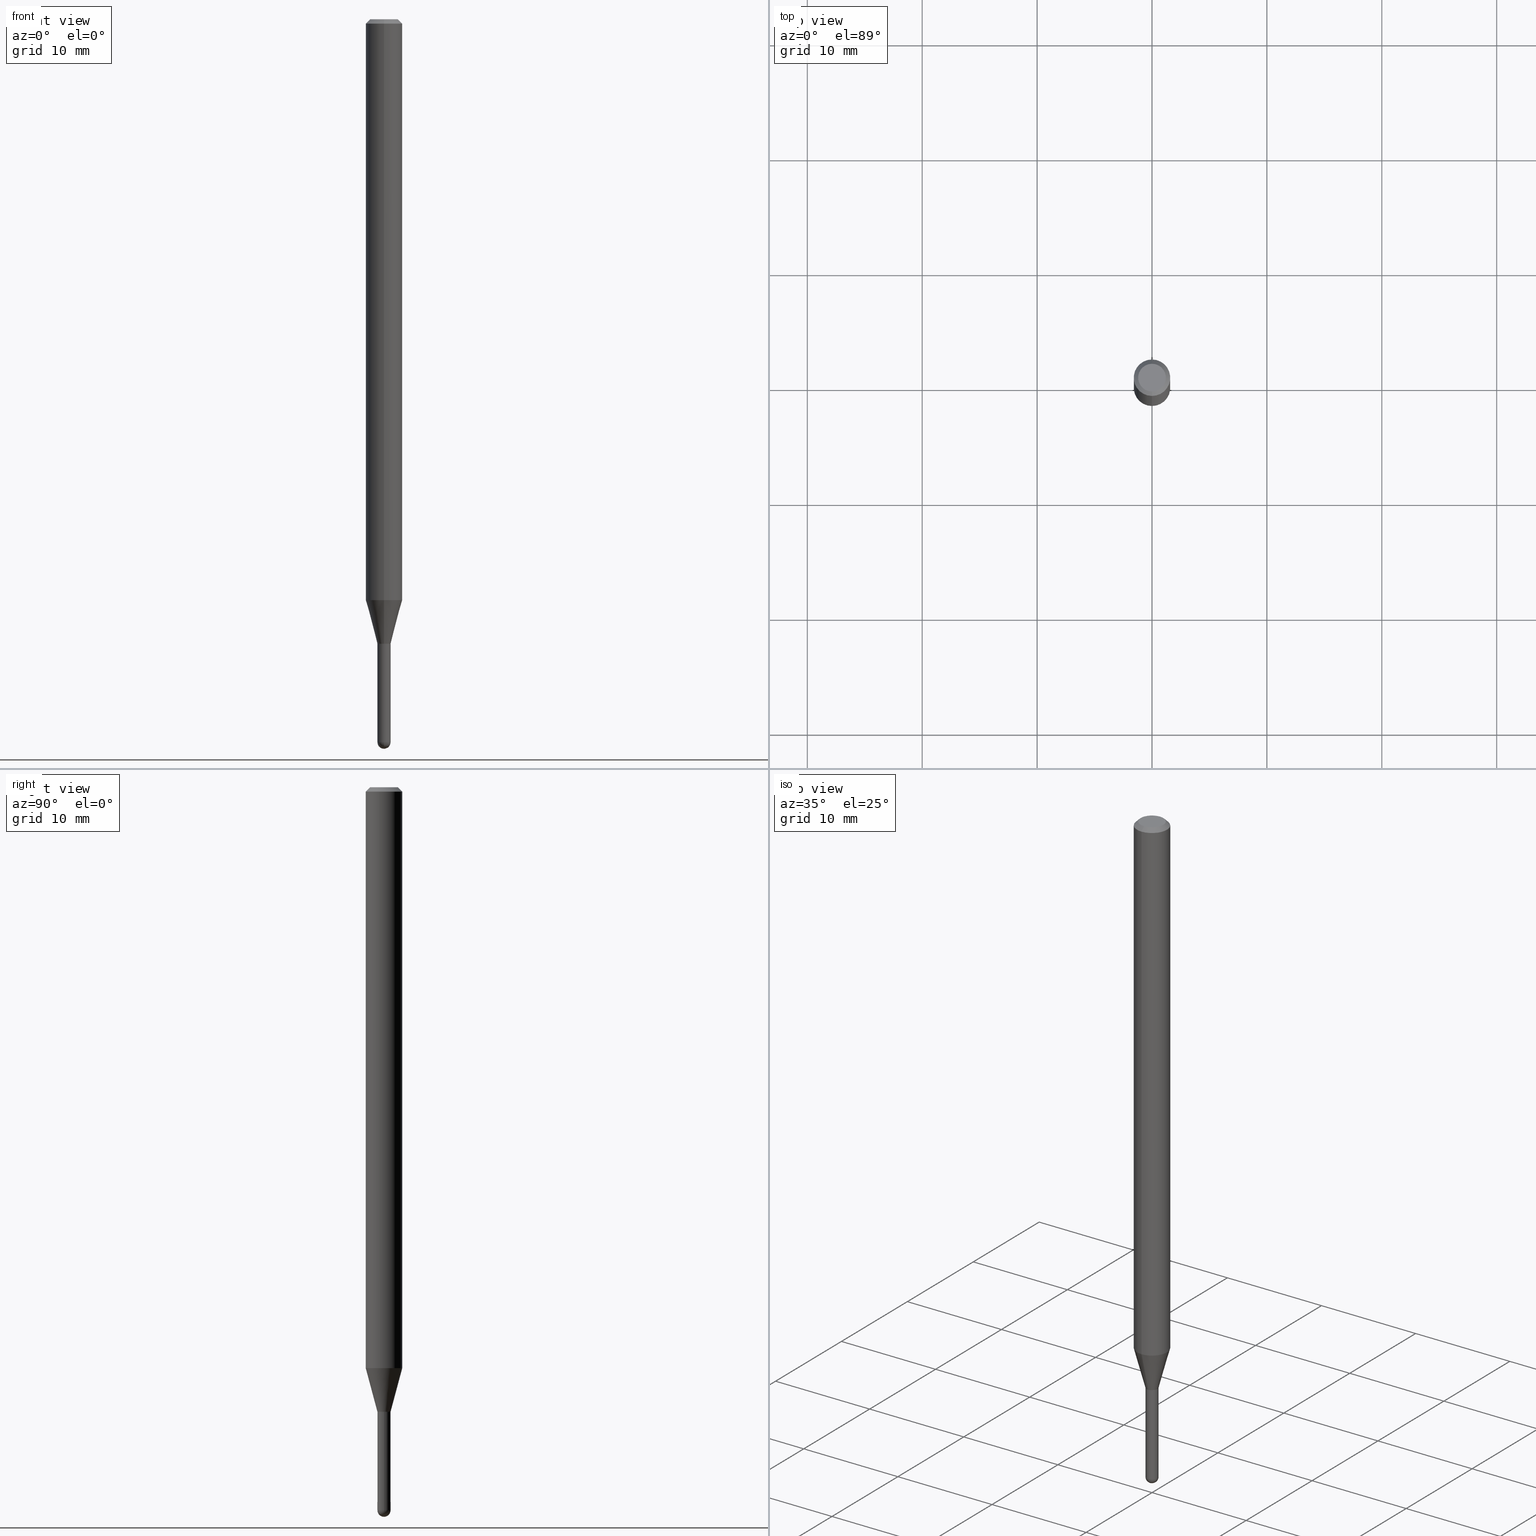
[diagram: canonical four-view strip — front | top / right | iso, engineering-drawing reading convention]
A machine part, canonical four-view strip (front | top / right | iso — engineering-drawing reading convention). The complete STEP part file that produces these views, byte-faithful:
ISO-10303-21;
HEADER;
FILE_DESCRIPTION (( 'STEP AP203' ),
    '1' );
FILE_NAME ('01535.STEP',
    '2024-03-07T19:37:22',
    ( '' ),
    ( '' ),
    'SwSTEP 2.0',
    'SolidWorks 2023',
    '' );
FILE_SCHEMA (( 'CONFIG_CONTROL_DESIGN' ));
ENDSEC;

DATA;
#1 = CIRCLE ( 'NONE', #127, 0.02250000000000019693 ) ;
#2 = PERSON_AND_ORGANIZATION ( #41, #285 ) ;
#3 = CC_DESIGN_APPROVAL ( #428, ( #442 ) ) ;
#4 = LINE ( 'NONE', #47, #118 ) ;
#5 = CALENDAR_DATE ( 2024, 7, 3 ) ;
#6 = ORIENTED_EDGE ( 'NONE', *, *, #357, .F. ) ;
#7 = DIRECTION ( 'NONE',  ( -2.445426570913478520E-29, 3.491541822156042445E-15, 1.000000000000000000 ) ) ;
#8 = CIRCLE ( 'NONE', #32, 0.02199999999999999872 ) ;
#9 = EDGE_CURVE ( 'NONE', #407, #60, #411, .T. ) ;
#10 = PERSON_AND_ORGANIZATION ( #41, #285 ) ;
#11 = VECTOR ( 'NONE', #458, 39.37007874015748854 ) ;
#12 = ADVANCED_FACE ( 'NONE', ( #59 ), #20, .F. ) ;
#13 = MANIFOLD_SOLID_BREP ( 'Body-Move/Copy2[1]', #91 ) ;
#14 = EDGE_LOOP ( 'NONE', ( #57, #26, #247, #19 ) ) ;
#15 = ORIENTED_EDGE ( 'NONE', *, *, #313, .T. ) ;
#16 = DIRECTION ( 'NONE',  ( -2.445426570913478520E-29, 3.491541822156042445E-15, 1.000000000000000000 ) ) ;
#17 = ORIENTED_EDGE ( 'NONE', *, *, #485, .T. ) ;
#18 = EDGE_CURVE ( 'NONE', #180, #479, #208, .T. ) ;
#19 = ORIENTED_EDGE ( 'NONE', *, *, #313, .F. ) ;
#20 = CYLINDRICAL_SURFACE ( 'NONE', #228, 0.02249999999999992284 ) ;
#21 = CIRCLE ( 'NONE', #212, 0.02199999999999999872 ) ;
#22 = ORIENTED_EDGE ( 'NONE', *, *, #495, .F. ) ;
#23 = CARTESIAN_POINT ( 'NONE',  ( 3.668139856370219951E-31, -5.237312733234067267E-17, -0.01500000000000000812 ) ) ;
#24 = EDGE_CURVE ( 'NONE', #450, #483, #284, .T. ) ;
#25 = CARTESIAN_POINT ( 'NONE',  ( -3.773273898774340269E-16, -0.04749999999999999362, 1.569907899179434960E-16 ) ) ;
#26 = ORIENTED_EDGE ( 'NONE', *, *, #37, .T. ) ;
#27 = CARTESIAN_POINT ( 'NONE',  ( 6.058648967323676636E-29, -8.650145016983893338E-15, -2.477500000000000036 ) ) ;
#28 = DIRECTION ( 'NONE',  ( -2.445426570913478520E-29, 3.491541822156042445E-15, 1.000000000000000000 ) ) ;
#29 = FACE_OUTER_BOUND ( 'NONE', #490, .T. ) ;
#30 = ORIENTED_EDGE ( 'NONE', *, *, #352, .F. ) ;
#31 = LINE ( 'NONE', #34, #214 ) ;
#32 = AXIS2_PLACEMENT_3D ( 'NONE', #368, #246, #328 ) ;
#33 = DIRECTION ( 'NONE',  ( -2.445426570913478520E-29, 3.491541822156042445E-15, 1.000000000000000000 ) ) ;
#34 = CARTESIAN_POINT ( 'NONE',  ( -4.287811248607203282E-16, -0.06250000000000005551, -0.01499999999999979128 ) ) ;
#35 = CARTESIAN_POINT ( 'NONE',  ( 4.868154613401735281E-29, -6.950675040332431188E-15, -1.990717967697250401 ) ) ;
#36 = LINE ( 'NONE', #431, #239 ) ;
#37 = EDGE_CURVE ( 'NONE', #180, #482, #173, .T. ) ;
#38 = DIRECTION ( 'NONE',  ( 1.000000000000000000, 0.000000000000000000, 0.000000000000000000 ) ) ;
#39 = CARTESIAN_POINT ( 'NONE',  ( 4.868154613401735281E-29, -6.950675040332431188E-15, -1.990717967697250401 ) ) ;
#40 = DATE_AND_TIME ( #270, #331 ) ;
#41 = PERSON ( 'UNSPECIFIED', 'UNSPECIFIED', 'UNSPECIFIED', ('UNSPECIFIED'), ('UNSPECIFIED'), ('UNSPECIFIED') ) ;
#42 = AXIS2_PLACEMENT_3D ( 'NONE', #216, #148, #381 ) ;
#43 = DIRECTION ( 'NONE',  ( -6.982962677686266711E-15, -1.000000000000000000, 0.000000000000000000 ) ) ;
#44 = DATE_AND_TIME ( #275, #323 ) ;
#45 = AXIS2_PLACEMENT_3D ( 'NONE', #296, #338, #71 ) ;
#46 = DIRECTION ( 'NONE',  ( -2.445426570913478800E-29, 3.491541822156042445E-15, 1.000000000000000000 ) ) ;
#47 = CARTESIAN_POINT ( 'NONE',  ( -1.571166602478900110E-16, -0.02250000000000766665, -2.140000000000000124 ) ) ;
#48 = ADVANCED_FACE ( 'NONE', ( #414 ), #194, .T. ) ;
#49 = CYLINDRICAL_SURFACE ( 'NONE', #154, 0.06250000000000000000 ) ;
#50 = CIRCLE ( 'NONE', #327, 0.06250000000000000000 ) ;
#51 = AXIS2_PLACEMENT_3D ( 'NONE', #369, #67, #287 ) ;
#52 = CC_DESIGN_APPROVAL ( #217, ( #367 ) ) ;
#53 = ADVANCED_FACE ( 'NONE', ( #184 ), #370, .T. ) ;
#54 = ORIENTED_EDGE ( 'NONE', *, *, #250, .T. ) ;
#55 = ORIENTED_EDGE ( 'NONE', *, *, #495, .T. ) ;
#56 = AXIS2_PLACEMENT_3D ( 'NONE', #248, #261, #333 ) ;
#57 = ORIENTED_EDGE ( 'NONE', *, *, #441, .F. ) ;
#58 = ORIENTED_EDGE ( 'NONE', *, *, #37, .F. ) ;
#59 = FACE_OUTER_BOUND ( 'NONE', #359, .T. ) ;
#60 = VERTEX_POINT ( 'NONE', #215 ) ;
#61 = DIRECTION ( 'NONE',  ( 2.445426570913478520E-29, -3.491541822156042445E-15, -1.000000000000000000 ) ) ;
#62 = CARTESIAN_POINT ( 'NONE',  ( 5.233212861754843371E-29, -7.471899499413932237E-15, -2.140000000000000124 ) ) ;
#63 = CARTESIAN_POINT ( 'NONE',  ( 6.058648967323676636E-29, -8.650145016983893338E-15, -2.477500000000000036 ) ) ;
#64 = CIRCLE ( 'NONE', #98, 0.02249999999999999917 ) ;
#65 = EDGE_LOOP ( 'NONE', ( #365, #30 ) ) ;
#66 = LINE ( 'NONE', #497, #142 ) ;
#67 = DIRECTION ( 'NONE',  ( -2.445426570913478520E-29, 3.491541822156042445E-15, 1.000000000000000000 ) ) ;
#68 = DIRECTION ( 'NONE',  ( -2.445426570913478520E-29, 3.491541822156042445E-15, 1.000000000000000000 ) ) ;
#69 = DIRECTION ( 'NONE',  ( -1.000000000000000000, 6.982962677686265922E-15, -4.883557194083111780E-29 ) ) ;
#70 = DIRECTION ( 'NONE',  ( -2.445426570913478520E-29, 3.491541822156042445E-15, 1.000000000000000000 ) ) ;
#71 = DIRECTION ( 'NONE',  ( -6.982962677686265133E-15, -1.000000000000000000, 3.491541822156042445E-15 ) ) ;
#72 = FACE_OUTER_BOUND ( 'NONE', #438, .T. ) ;
#73 = CARTESIAN_POINT ( 'NONE',  ( 0.000000000000000000, 0.000000000000000000, 0.000000000000000000 ) ) ;
#74 = CARTESIAN_POINT ( 'NONE',  ( 6.112709953387515030E-29, -8.730081074756904482E-15, -2.500000000000000000 ) ) ;
#75 = APPROVAL_STATUS ( 'not_yet_approved' ) ;
#76 = AXIS2_PLACEMENT_3D ( 'NONE', #452, #61, #210 ) ;
#77 = CARTESIAN_POINT ( 'NONE',  ( 0.000000000000000000, 0.000000000000000000, 0.000000000000000000 ) ) ;
#78 = PERSON_AND_ORGANIZATION_ROLE ( 'creator' ) ;
#79 = EDGE_CURVE ( 'NONE', #183, #180, #1, .T. ) ;
#80 = CARTESIAN_POINT ( 'NONE',  ( -1.571166602478900110E-16, -0.02250000000000766665, -2.140000000000000124 ) ) ;
#81 = DIRECTION ( 'NONE',  ( -2.445468806185136877E-29, 3.491481338843145188E-15, 1.000000000000000000 ) ) ;
#82 = CIRCLE ( 'NONE', #488, 0.06250000000000000000 ) ;
#83 = CIRCLE ( 'NONE', #168, 0.02250000000000005121 ) ;
#84 = VERTEX_POINT ( 'NONE', #498 ) ;
#85 = PRODUCT ( '01535', '01535', '', ( #350 ) ) ;
#86 = EDGE_LOOP ( 'NONE', ( #55, #405 ) ) ;
#87 = EDGE_LOOP ( 'NONE', ( #158, #169, #242, #99 ) ) ;
#88 = AXIS2_PLACEMENT_3D ( 'NONE', #35, #33, #258 ) ;
#89 = EDGE_LOOP ( 'NONE', ( #244, #22, #277, #364 ) ) ;
#90 = ORIENTED_EDGE ( 'NONE', *, *, #9, .T. ) ;
#91 = CLOSED_SHELL ( 'NONE', ( #289, #451, #163, #128, #348 ) ) ;
#92 = EDGE_CURVE ( 'NONE', #479, #454, #403, .T. ) ;
#93 = ORIENTED_EDGE ( 'NONE', *, *, #502, .T. ) ;
#94 = ORIENTED_EDGE ( 'NONE', *, *, #441, .T. ) ;
#95 = CARTESIAN_POINT ( 'NONE',  ( 1.598721155460717904E-16, 0.02249999999999210271, -2.139500000000000401 ) ) ;
#96 = VERTEX_POINT ( 'NONE', #190 ) ;
#97 = DIRECTION ( 'NONE',  ( -2.445426570913478520E-29, 3.491541822156042445E-15, 1.000000000000000000 ) ) ;
#98 = AXIS2_PLACEMENT_3D ( 'NONE', #465, #424, #108 ) ;
#99 = ORIENTED_EDGE ( 'NONE', *, *, #192, .F. ) ;
#100 = CC_DESIGN_APPROVAL ( #119, ( #165 ) ) ;
#101 = DIRECTION ( 'NONE',  ( -7.105427357600999492E-15, -1.000000000000000000, 0.000000000000000000 ) ) ;
#102 = DIRECTION ( 'NONE',  ( 5.024295867785445738E-15, 0.7071067811861817543, 0.7071067811869132802 ) ) ;
#103 = CARTESIAN_POINT ( 'NONE',  ( -0.02249999999999999570, -7.901085425508090322E-15, -2.477500000000000036 ) ) ;
#104 = CARTESIAN_POINT ( 'NONE',  ( 0.02249999999999999570, -8.218074201302054244E-15, -2.477500000000000036 ) ) ;
#105 = CARTESIAN_POINT ( 'NONE',  ( 3.668139856370219951E-31, -5.237312733234067267E-17, -0.01500000000000000812 ) ) ;
#106 = CONICAL_SURFACE ( 'NONE', #76, 0.06250000000000000000, 0.7853981633974483900 ) ;
#107 = APPROVAL_PERSON_ORGANIZATION ( #115, #119, #306 ) ;
#108 = DIRECTION ( 'NONE',  ( 1.000000000000000000, -6.982962677686269077E-15, 0.000000000000000000 ) ) ;
#109 = DIRECTION ( 'NONE',  ( -1.807323732225376682E-15, -0.2588190451025248473, 0.9659258262890673130 ) ) ;
#110 = COORDINATED_UNIVERSAL_TIME_OFFSET ( 5, 0, .BEHIND. ) ;
#111 = AXIS2_PLACEMENT_3D ( 'NONE', #463, #455, #146 ) ;
#112 = EDGE_CURVE ( 'NONE', #96, #126, #387, .T. ) ;
#113 = FACE_OUTER_BOUND ( 'NONE', #65, .T. ) ;
#114 = APPLICATION_CONTEXT ( 'configuration controlled 3d designs of mechanical parts and assemblies' ) ;
#115 = PERSON_AND_ORGANIZATION ( #41, #285 ) ;
#116 = LINE ( 'NONE', #439, #321 ) ;
#117 = APPROVAL_DATE_TIME ( #44, #428 ) ;
#118 = VECTOR ( 'NONE', #109, 39.37007874015747433 ) ;
#119 = APPROVAL ( #75, 'UNSPECIFIED' ) ;
#120 = COORDINATED_UNIVERSAL_TIME_OFFSET ( 5, 0, .BEHIND. ) ;
#121 = CLOSED_SHELL ( 'NONE', ( #486, #207, #276, #174, #48, #358, #209, #53, #226, #317, #443, #12 ) ) ;
#122 = EDGE_LOOP ( 'NONE', ( #213, #354, #487, #412 ) ) ;
#123 = FACE_OUTER_BOUND ( 'NONE', #206, .T. ) ;
#124 = DIRECTION ( 'NONE',  ( -6.982962677686265922E-15, -1.000000000000000000, 0.000000000000000000 ) ) ;
#125 = PERSON_AND_ORGANIZATION ( #41, #285 ) ;
#126 = VERTEX_POINT ( 'NONE', #461 ) ;
#127 = AXIS2_PLACEMENT_3D ( 'NONE', #377, #28, #182 ) ;
#128 = ADVANCED_FACE ( 'NONE', ( #505 ), #150, .T. ) ;
#129 = ORIENTED_EDGE ( 'NONE', *, *, #160, .F. ) ;
#130 = ORIENTED_EDGE ( 'NONE', *, *, #485, .F. ) ;
#131 = AXIS2_PLACEMENT_3D ( 'NONE', #402, #433, #43 ) ;
#132 = EDGE_CURVE ( 'NONE', #334, #482, #304, .T. ) ;
#133 = CIRCLE ( 'NONE', #307, 0.02250000000000005121 ) ;
#134 = ORIENTED_EDGE ( 'NONE', *, *, #507, .T. ) ;
#135 = DIRECTION ( 'NONE',  ( -2.445426570913478800E-29, 3.491541822156042445E-15, 1.000000000000000000 ) ) ;
#136 = VERTEX_POINT ( 'NONE', #429 ) ;
#137 = DIRECTION ( 'NONE',  ( 6.982962677686265922E-15, 1.000000000000000000, -3.483106191921935554E-15 ) ) ;
#138 = SPHERICAL_SURFACE ( 'NONE', #56, 0.02250000000000005121 ) ;
#139 = ORIENTED_EDGE ( 'NONE', *, *, #464, .F. ) ;
#140 = CARTESIAN_POINT ( 'NONE',  ( 6.058648967323676636E-29, -8.650145016983893338E-15, -2.477500000000000036 ) ) ;
#141 = VERTEX_POINT ( 'NONE', #74 ) ;
#142 = VECTOR ( 'NONE', #413, 39.37007874015748143 ) ;
#143 = DIRECTION ( 'NONE',  ( 6.982962677686265922E-15, 1.000000000000000000, 0.000000000000000000 ) ) ;
#144 = DIMENSIONAL_EXPONENTS ( 1.000000000000000000, 0.000000000000000000, 0.000000000000000000, 0.000000000000000000, 0.000000000000000000, 0.000000000000000000, 0.000000000000000000 ) ;
#145 = CYLINDRICAL_SURFACE ( 'NONE', #282, 0.06250000000000000000 ) ;
#146 = DIRECTION ( 'NONE',  ( 1.000000000000000000, -6.982962677686269077E-15, 0.000000000000000000 ) ) ;
#147 = CARTESIAN_POINT ( 'NONE',  ( -1.536251789090455247E-16, -0.02200000000000746844, -2.140000000000000568 ) ) ;
#148 = DIRECTION ( 'NONE',  ( -2.445426570913478239E-29, 3.491541822156042445E-15, 1.000000000000000000 ) ) ;
#149 = CARTESIAN_POINT ( 'NONE',  ( -4.364351673553429572E-16, -0.06250000000000695277, -1.990717967697250179 ) ) ;
#150 = SPHERICAL_SURFACE ( 'NONE', #185, 0.02250000000000005121 ) ;
#151 = DIRECTION ( 'NONE',  ( -6.982962677686265922E-15, -1.000000000000000000, 0.000000000000000000 ) ) ;
#152 = CARTESIAN_POINT ( 'NONE',  ( 3.316907271900976096E-16, 0.04749999999999999362, -1.702769598696462654E-16 ) ) ;
#153 = DESIGN_CONTEXT ( 'detailed design', #392, 'design' ) ;
#154 = AXIS2_PLACEMENT_3D ( 'NONE', #77, #157, #353 ) ;
#155 = DATE_AND_TIME ( #272, #491 ) ;
#156 = APPROVAL_ROLE ( '' ) ;
#157 = DIRECTION ( 'NONE',  ( -2.445426570913478520E-29, 3.491541822156042445E-15, 1.000000000000000000 ) ) ;
#158 = ORIENTED_EDGE ( 'NONE', *, *, #79, .T. ) ;
#159 = CONICAL_SURFACE ( 'NONE', #406, 0.02199999999999999872, 0.7853981633969275844 ) ;
#160 = EDGE_CURVE ( 'NONE', #171, #60, #64, .T. ) ;
#161 = APPLICATION_PROTOCOL_DEFINITION ( 'international standard', 'config_control_design', 1994, #114 ) ;
#162 = ORIENTED_EDGE ( 'NONE', *, *, #257, .T. ) ;
#163 = ADVANCED_FACE ( 'NONE', ( #187 ), #500, .F. ) ;
#164 = CIRCLE ( 'NONE', #278, 0.02249999999999999570 ) ;
#165 = PRODUCT_DEFINITION_FORMATION_WITH_SPECIFIED_SOURCE ( 'ANY', '', #85, .NOT_KNOWN. ) ;
#166 = VERTEX_POINT ( 'NONE', #104 ) ;
#167 = FACE_OUTER_BOUND ( 'NONE', #14, .T. ) ;
#168 = AXIS2_PLACEMENT_3D ( 'NONE', #459, #427, #101 ) ;
#169 = ORIENTED_EDGE ( 'NONE', *, *, #18, .T. ) ;
#170 = CC_DESIGN_PERSON_AND_ORGANIZATION_ASSIGNMENT ( #2, #231, ( #367 ) ) ;
#171 = VERTEX_POINT ( 'NONE', #262 ) ;
#172 = DIRECTION ( 'NONE',  ( 1.000000000000000000, -6.982962677686269866E-15, 0.000000000000000000 ) ) ;
#173 = LINE ( 'NONE', #177, #330 ) ;
#174 = ADVANCED_FACE ( 'NONE', ( #72 ), #145, .T. ) ;
#175 = VERTEX_POINT ( 'NONE', #351 ) ;
#176 = FACE_OUTER_BOUND ( 'NONE', #294, .T. ) ;
#177 = CARTESIAN_POINT ( 'NONE',  ( 1.598721155460219689E-16, 0.02249999999999992284, -7.855969099851068237E-17 ) ) ;
#178 = DIRECTION ( 'NONE',  ( 1.000000000000000000, -6.982962677686269866E-15, 0.000000000000000000 ) ) ;
#179 = MANIFOLD_SOLID_BREP ( 'Body-Move/Copy2[2]', #121 ) ;
#180 = VERTEX_POINT ( 'NONE', #394 ) ;
#181 = DIRECTION ( 'NONE',  ( 1.000000000000000000, -6.982962677686269866E-15, 0.000000000000000000 ) ) ;
#182 = DIRECTION ( 'NONE',  ( -6.982962677686265133E-15, -1.000000000000000000, 0.000000000000000000 ) ) ;
#183 = VERTEX_POINT ( 'NONE', #80 ) ;
#184 = FACE_OUTER_BOUND ( 'NONE', #89, .T. ) ;
#185 = AXIS2_PLACEMENT_3D ( 'NONE', #383, #69, #509 ) ;
#186 = DIRECTION ( 'NONE',  ( -6.982962677686265133E-15, -1.000000000000000000, 0.000000000000000000 ) ) ;
#187 = FACE_OUTER_BOUND ( 'NONE', #319, .T. ) ;
#188 = EDGE_CURVE ( 'NONE', #454, #175, #308, .T. ) ;
#189 =( LENGTH_UNIT ( ) NAMED_UNIT ( * ) SI_UNIT ( $, .METRE. ) );
#190 = CARTESIAN_POINT ( 'NONE',  ( -1.536251789090455247E-16, -0.02200000000000746844, -2.140000000000000568 ) ) ;
#191 = DIRECTION ( 'NONE',  ( -2.445426570913478520E-29, 3.491541822156042445E-15, 1.000000000000000000 ) ) ;
#192 = EDGE_CURVE ( 'NONE', #183, #454, #4, .T. ) ;
#193 = COORDINATED_UNIVERSAL_TIME_OFFSET ( 5, 0, .BEHIND. ) ;
#194 = CONICAL_SURFACE ( 'NONE', #199, 0.02250000000000019693, 0.2617993877991571239 ) ;
#195 = SHAPE_DEFINITION_REPRESENTATION ( #493, #266 ) ;
#196 = CALENDAR_DATE ( 2024, 7, 3 ) ;
#197 = CARTESIAN_POINT ( 'NONE',  ( 5.231990148469387931E-29, -7.470153728502853456E-15, -2.139500000000000401 ) ) ;
#198 = DIRECTION ( 'NONE',  ( -2.445426570913478520E-29, 3.491541822156042445E-15, 1.000000000000000000 ) ) ;
#199 = AXIS2_PLACEMENT_3D ( 'NONE', #62, #211, #372 ) ;
#200 = PLANE ( 'NONE',  #385 ) ;
#201 = EDGE_CURVE ( 'NONE', #126, #482, #395, .T. ) ;
#202 = AXIS2_PLACEMENT_3D ( 'NONE', #197, #274, #484 ) ;
#203 = VECTOR ( 'NONE', #218, 39.37007874015748143 ) ;
#204 = CC_DESIGN_DATE_AND_TIME_ASSIGNMENT ( #40, #480, ( #367 ) ) ;
#205 = ORIENTED_EDGE ( 'NONE', *, *, #112, .F. ) ;
#206 = EDGE_LOOP ( 'NONE', ( #360, #94, #281, #329 ) ) ;
#207 = ADVANCED_FACE ( 'NONE', ( #435 ), #159, .T. ) ;
#208 = LINE ( 'NONE', #380, #11 ) ;
#209 = ADVANCED_FACE ( 'NONE', ( #311 ), #49, .T. ) ;
#210 = DIRECTION ( 'NONE',  ( 6.982962677686265922E-15, 1.000000000000000000, -3.483106191921935554E-15 ) ) ;
#211 = DIRECTION ( 'NONE',  ( -2.445426570913478520E-29, 3.491541822156042445E-15, 1.000000000000000000 ) ) ;
#212 = AXIS2_PLACEMENT_3D ( 'NONE', #388, #191, #151 ) ;
#213 = ORIENTED_EDGE ( 'NONE', *, *, #250, .F. ) ;
#214 = VECTOR ( 'NONE', #378, 39.37007874015748143 ) ;
#215 = CARTESIAN_POINT ( 'NONE',  ( -0.02249999999999999917, -7.901085425508090322E-15, -2.140000000000000124 ) ) ;
#216 = CARTESIAN_POINT ( 'NONE',  ( 5.233212861754843371E-29, -7.471899499413932237E-15, -2.140000000000000124 ) ) ;
#217 = APPROVAL ( #474, 'UNSPECIFIED' ) ;
#218 = DIRECTION ( 'NONE',  ( 4.937700262164548042E-15, 0.7071067811865451302, -0.7071067811865499042 ) ) ;
#219 = ORIENTED_EDGE ( 'NONE', *, *, #502, .F. ) ;
#220 = DIRECTION ( 'NONE',  ( -2.445468806185136877E-29, 3.491481338843145188E-15, 1.000000000000000000 ) ) ;
#221 = DIRECTION ( 'NONE',  ( -6.982962677686265922E-15, -1.000000000000000000, 3.483106191921935554E-15 ) ) ;
#222 =( CONVERSION_BASED_UNIT ( 'INCH', #342 ) LENGTH_UNIT ( ) NAMED_UNIT ( #144 ) );
#223 = DIRECTION ( 'NONE',  ( -6.982962677686265922E-15, -1.000000000000000000, 3.491541822156042445E-15 ) ) ;
#224 = VECTOR ( 'NONE', #345, 39.37007874015748143 ) ;
#225 = CARTESIAN_POINT ( 'NONE',  ( 2.166023535037743243E-46, -3.092614536176203835E-32, -8.857446634468498030E-18 ) ) ;
#226 = ADVANCED_FACE ( 'NONE', ( #271 ), #200, .F. ) ;
#227 = DIRECTION ( 'NONE',  ( -2.445468806185136597E-29, 3.491481338843145583E-15, 1.000000000000000000 ) ) ;
#228 = AXIS2_PLACEMENT_3D ( 'NONE', #416, #255, #337 ) ;
#229 = APPROVAL_DATE_TIME ( #437, #119 ) ;
#230 = EDGE_CURVE ( 'NONE', #454, #479, #82, .T. ) ;
#231 = PERSON_AND_ORGANIZATION_ROLE ( 'creator' ) ;
#232 = CIRCLE ( 'NONE', #361, 0.02250000000000019693 ) ;
#233 = CIRCLE ( 'NONE', #202, 0.02249999999999964875 ) ;
#234 = CARTESIAN_POINT ( 'NONE',  ( 6.058648967323676636E-29, -8.650145016983893338E-15, -2.477500000000000036 ) ) ;
#235 = ORIENTED_EDGE ( 'NONE', *, *, #9, .F. ) ;
#236 = APPROVAL_DATE_TIME ( #475, #217 ) ;
#237 = ORIENTED_EDGE ( 'NONE', *, *, #201, .T. ) ;
#238 = PERSON_AND_ORGANIZATION_ROLE ( 'design_owner' ) ;
#239 = VECTOR ( 'NONE', #425, 39.37007874015748143 ) ;
#240 = ORIENTED_EDGE ( 'NONE', *, *, #264, .F. ) ;
#241 = EDGE_LOOP ( 'NONE', ( #280, #249, #453, #205 ) ) ;
#242 = ORIENTED_EDGE ( 'NONE', *, *, #230, .F. ) ;
#243 = ORIENTED_EDGE ( 'NONE', *, *, #264, .T. ) ;
#244 = ORIENTED_EDGE ( 'NONE', *, *, #466, .F. ) ;
#245 = ORIENTED_EDGE ( 'NONE', *, *, #356, .F. ) ;
#246 = DIRECTION ( 'NONE',  ( -2.445426570913478520E-29, 3.491541822156042445E-15, 1.000000000000000000 ) ) ;
#247 = ORIENTED_EDGE ( 'NONE', *, *, #374, .T. ) ;
#248 = CARTESIAN_POINT ( 'NONE',  ( 6.056724843173022591E-29, -8.652900472281975573E-15, -2.477500000000000036 ) ) ;
#249 = ORIENTED_EDGE ( 'NONE', *, *, #132, .T. ) ;
#250 = EDGE_CURVE ( 'NONE', #479, #84, #66, .T. ) ;
#251 = ORIENTED_EDGE ( 'NONE', *, *, #132, .F. ) ;
#252 = CIRCLE ( 'NONE', #263, 0.02249999999999999570 ) ;
#253 = CARTESIAN_POINT ( 'NONE',  ( 5.233212861754844492E-29, -7.471899499413932237E-15, -2.140000000000000568 ) ) ;
#254 = ORIENTED_EDGE ( 'NONE', *, *, #507, .F. ) ;
#255 = DIRECTION ( 'NONE',  ( -2.445426570913478520E-29, 3.491541822156042445E-15, 1.000000000000000000 ) ) ;
#256 = DIRECTION ( 'NONE',  ( -6.982962677686265922E-15, -1.000000000000000000, 0.000000000000000000 ) ) ;
#257 = EDGE_CURVE ( 'NONE', #448, #407, #252, .T. ) ;
#258 = DIRECTION ( 'NONE',  ( -6.982962677686265922E-15, -1.000000000000000000, 4.370956789862821150E-15 ) ) ;
#259 = FACE_OUTER_BOUND ( 'NONE', #449, .T. ) ;
#260 = EDGE_CURVE ( 'NONE', #96, #334, #8, .T. ) ;
#261 = DIRECTION ( 'NONE',  ( -1.000000000000000000, 6.982962677686265922E-15, -4.883557194083111780E-29 ) ) ;
#262 = CARTESIAN_POINT ( 'NONE',  ( 0.02249999999999999917, -7.628886725372273518E-15, -2.140000000000000124 ) ) ;
#263 = AXIS2_PLACEMENT_3D ( 'NONE', #140, #376, #181 ) ;
#264 = EDGE_CURVE ( 'NONE', #407, #136, #436, .T. ) ;
#265 = DIRECTION ( 'NONE',  ( -1.000000000000000000, 6.982962677686265922E-15, -4.876176775795935793E-29 ) ) ;
#266 = ADVANCED_BREP_SHAPE_REPRESENTATION ( '01535', ( #13, #179, #318 ), #408 ) ;
#267 = VECTOR ( 'NONE', #220, 39.37007874015748143 ) ;
#268 = LOCAL_TIME ( 14, 37, 22.00000000000000000, #193 ) ;
#269 = DATE_TIME_ROLE ( 'classification_date' ) ;
#270 = CALENDAR_DATE ( 2024, 7, 3 ) ;
#271 = FACE_OUTER_BOUND ( 'NONE', #86, .T. ) ;
#272 = CALENDAR_DATE ( 2024, 7, 3 ) ;
#273 = CIRCLE ( 'NONE', #309, 0.04749999999999999362 ) ;
#274 = DIRECTION ( 'NONE',  ( -2.445426570913478520E-29, 3.491541822156042445E-15, 1.000000000000000000 ) ) ;
#275 = CALENDAR_DATE ( 2024, 7, 3 ) ;
#276 = ADVANCED_FACE ( 'NONE', ( #176 ), #106, .T. ) ;
#277 = ORIENTED_EDGE ( 'NONE', *, *, #464, .T. ) ;
#278 = AXIS2_PLACEMENT_3D ( 'NONE', #234, #320, #396 ) ;
#279 = EDGE_CURVE ( 'NONE', #84, #175, #50, .T. ) ;
#280 = ORIENTED_EDGE ( 'NONE', *, *, #260, .T. ) ;
#281 = ORIENTED_EDGE ( 'NONE', *, *, #192, .T. ) ;
#282 = AXIS2_PLACEMENT_3D ( 'NONE', #297, #421, #223 ) ;
#283 = EDGE_LOOP ( 'NONE', ( #489, #444, #130, #6 ) ) ;
#284 = CIRCLE ( 'NONE', #51, 0.04749999999999999362 ) ;
#285 = ORGANIZATION ( 'UNSPECIFIED', 'UNSPECIFIED', '' ) ;
#286 = DIRECTION ( 'NONE',  ( -2.445426570913478520E-29, 3.491541822156042445E-15, 1.000000000000000000 ) ) ;
#287 = DIRECTION ( 'NONE',  ( -6.982962677686266711E-15, -1.000000000000000000, 3.491541822156042445E-15 ) ) ;
#288 = CARTESIAN_POINT ( 'NONE',  ( 4.364351673553919652E-16, 0.06249999999999995143, -0.01500000000000022669 ) ) ;
#289 = ADVANCED_FACE ( 'NONE', ( #473 ), #340, .T. ) ;
#290 = ORIENTED_EDGE ( 'NONE', *, *, #356, .T. ) ;
#291 = DIRECTION ( 'NONE',  ( -6.982962677686266711E-15, -1.000000000000000000, 3.491541822156042445E-15 ) ) ;
#292 = EDGE_LOOP ( 'NONE', ( #496, #332, #240, #366 ) ) ;
#293 = DIRECTION ( 'NONE',  ( -2.445468806185136597E-29, 3.491481338843145583E-15, 1.000000000000000000 ) ) ;
#294 = EDGE_LOOP ( 'NONE', ( #324, #326, #134, #139 ) ) ;
#295 = CONICAL_SURFACE ( 'NONE', #456, 0.02250000000000019693, 0.2617993877991571239 ) ;
#296 = CARTESIAN_POINT ( 'NONE',  ( 0.000000000000000000, 0.000000000000000000, 0.000000000000000000 ) ) ;
#297 = CARTESIAN_POINT ( 'NONE',  ( 0.000000000000000000, 0.000000000000000000, 0.000000000000000000 ) ) ;
#298 = DIRECTION ( 'NONE',  ( 1.000000000000000000, -6.982962677686266711E-15, 4.876176775795935793E-29 ) ) ;
#299 = CC_DESIGN_DATE_AND_TIME_ASSIGNMENT ( #155, #269, ( #442 ) ) ;
#300 = DIRECTION ( 'NONE',  ( -2.445426570913478520E-29, 3.491541822156042445E-15, 1.000000000000000000 ) ) ;
#301 = CARTESIAN_POINT ( 'NONE',  ( 1.571166602479933025E-16, 0.02249999999999252945, -2.140000000000000124 ) ) ;
#302 = DIRECTION ( 'NONE',  ( -2.445468806185136597E-29, 3.491481338843145583E-15, 1.000000000000000000 ) ) ;
#303 = FACE_OUTER_BOUND ( 'NONE', #292, .T. ) ;
#304 = LINE ( 'NONE', #467, #481 ) ;
#305 = DIRECTION ( 'NONE',  ( 2.445426570913478239E-29, -3.491541822156042445E-15, -1.000000000000000000 ) ) ;
#306 = APPROVAL_ROLE ( '' ) ;
#307 = AXIS2_PLACEMENT_3D ( 'NONE', #494, #382, #143 ) ;
#308 = LINE ( 'NONE', #398, #347 ) ;
#309 = AXIS2_PLACEMENT_3D ( 'NONE', #225, #300, #291 ) ;
#310 = COORDINATED_UNIVERSAL_TIME_OFFSET ( 5, 0, .BEHIND. ) ;
#311 = FACE_OUTER_BOUND ( 'NONE', #122, .T. ) ;
#312 = CARTESIAN_POINT ( 'NONE',  ( 5.233212861754843371E-29, -7.471899499413932237E-15, -2.140000000000000124 ) ) ;
#313 = EDGE_CURVE ( 'NONE', #183, #126, #36, .T. ) ;
#314 = APPROVAL_ROLE ( '' ) ;
#315 = AXIS2_PLACEMENT_3D ( 'NONE', #23, #492, #137 ) ;
#316 = ORIENTED_EDGE ( 'NONE', *, *, #374, .F. ) ;
#317 = ADVANCED_FACE ( 'NONE', ( #113 ), #506, .F. ) ;
#318 = AXIS2_PLACEMENT_3D ( 'NONE', #73, #393, #38 ) ;
#319 = EDGE_LOOP ( 'NONE', ( #379, #93 ) ) ;
#320 = DIRECTION ( 'NONE',  ( -2.445468806185136597E-29, 3.491481338843145583E-15, 1.000000000000000000 ) ) ;
#321 = VECTOR ( 'NONE', #81, 39.37007874015748143 ) ;
#322 =( NAMED_UNIT ( * ) SI_UNIT ( $, .STERADIAN. ) SOLID_ANGLE_UNIT ( ) );
#323 = LOCAL_TIME ( 14, 37, 22.00000000000000000, #310 ) ;
#324 = ORIENTED_EDGE ( 'NONE', *, *, #24, .F. ) ;
#325 = CARTESIAN_POINT ( 'NONE',  ( -0.02249999999999999917, 1.598721155460225359E-16, -1.106760395307353780E-30 ) ) ;
#326 = ORIENTED_EDGE ( 'NONE', *, *, #466, .T. ) ;
#327 = AXIS2_PLACEMENT_3D ( 'NONE', #371, #70, #221 ) ;
#328 = DIRECTION ( 'NONE',  ( -6.982962677686265922E-15, -1.000000000000000000, 0.000000000000000000 ) ) ;
#329 = ORIENTED_EDGE ( 'NONE', *, *, #92, .F. ) ;
#330 = VECTOR ( 'NONE', #135, 39.37007874015748143 ) ;
#331 = LOCAL_TIME ( 14, 37, 22.00000000000000000, #349 ) ;
#332 = ORIENTED_EDGE ( 'NONE', *, *, #511, .T. ) ;
#333 = DIRECTION ( 'NONE',  ( 6.982962677686265922E-15, 1.000000000000000000, 0.000000000000000000 ) ) ;
#334 = VERTEX_POINT ( 'NONE', #501 ) ;
#335 = UNCERTAINTY_MEASURE_WITH_UNIT (LENGTH_MEASURE( 1.000000000000000082E-05 ), #222, 'distance_accuracy_value', 'NONE');
#336 = DIRECTION ( 'NONE',  ( -6.982962677686265922E-15, -1.000000000000000000, 4.370956789862821150E-15 ) ) ;
#337 = DIRECTION ( 'NONE',  ( -6.982962677686265133E-15, -1.000000000000000000, 3.491541822156042445E-15 ) ) ;
#338 = DIRECTION ( 'NONE',  ( -2.445426570913478520E-29, 3.491541822156042445E-15, 1.000000000000000000 ) ) ;
#339 = EDGE_LOOP ( 'NONE', ( #162, #90, #129, #245, #17 ) ) ;
#340 = CYLINDRICAL_SURFACE ( 'NONE', #469, 0.02249999999999999917 ) ;
#341 = CONICAL_SURFACE ( 'NONE', #477, 0.02199999999999999872, 0.7853981633969275844 ) ;
#342 = LENGTH_MEASURE_WITH_UNIT ( LENGTH_MEASURE( 0.02539999999999999897 ), #189 );
#343 = DIRECTION ( 'NONE',  ( 2.438088387897960049E-29, -3.491481338843145188E-15, -1.000000000000000000 ) ) ;
#344 = CARTESIAN_POINT ( 'NONE',  ( 4.440892098501109339E-16, 0.06249999999999302641, -1.990717967697250623 ) ) ;
#345 = DIRECTION ( 'NONE',  ( -4.937700262161976356E-15, -0.7071067811861768693, 0.7071067811869181652 ) ) ;
#346 = PERSON_AND_ORGANIZATION ( #41, #285 ) ;
#347 = VECTOR ( 'NONE', #46, 39.37007874015748143 ) ;
#348 = ADVANCED_FACE ( 'NONE', ( #259 ), #422, .T. ) ;
#349 = COORDINATED_UNIVERSAL_TIME_OFFSET ( 5, 0, .BEHIND. ) ;
#350 = MECHANICAL_CONTEXT ( 'NONE', #114, 'mechanical' ) ;
#351 = CARTESIAN_POINT ( 'NONE',  ( -4.364351673553912750E-16, -0.06250000000000005551, -0.01499999999999979128 ) ) ;
#352 = EDGE_CURVE ( 'NONE', #334, #96, #21, .T. ) ;
#353 = DIRECTION ( 'NONE',  ( -6.982962677686265922E-15, -1.000000000000000000, 3.491541822156042445E-15 ) ) ;
#354 = ORIENTED_EDGE ( 'NONE', *, *, #92, .T. ) ;
#355 = SECURITY_CLASSIFICATION_LEVEL ( 'unclassified' ) ;
#356 = EDGE_CURVE ( 'NONE', #166, #171, #116, .T. ) ;
#357 = EDGE_CURVE ( 'NONE', #136, #166, #164, .T. ) ;
#358 = ADVANCED_FACE ( 'NONE', ( #123 ), #295, .T. ) ;
#359 = EDGE_LOOP ( 'NONE', ( #58, #401, #15, #237 ) ) ;
#360 = ORIENTED_EDGE ( 'NONE', *, *, #18, .F. ) ;
#361 = AXIS2_PLACEMENT_3D ( 'NONE', #373, #16, #186 ) ;
#362 =( NAMED_UNIT ( * ) PLANE_ANGLE_UNIT ( ) SI_UNIT ( $, .RADIAN. ) );
#363 = CIRCLE ( 'NONE', #111, 0.02249999999999999917 ) ;
#364 = ORIENTED_EDGE ( 'NONE', *, *, #279, .T. ) ;
#365 = ORIENTED_EDGE ( 'NONE', *, *, #260, .F. ) ;
#366 = ORIENTED_EDGE ( 'NONE', *, *, #257, .F. ) ;
#367 = PRODUCT_DEFINITION ( 'UNKNOWN', '', #165, #153 ) ;
#368 = CARTESIAN_POINT ( 'NONE',  ( 5.233212861754844492E-29, -7.471899499413932237E-15, -2.140000000000000568 ) ) ;
#369 = CARTESIAN_POINT ( 'NONE',  ( 2.166023535037743243E-46, -3.092614536176203835E-32, -8.857446634468498030E-18 ) ) ;
#370 = CONICAL_SURFACE ( 'NONE', #315, 0.06250000000000000000, 0.7853981633974483900 ) ;
#371 = CARTESIAN_POINT ( 'NONE',  ( 3.668139856370219951E-31, -5.237312733234067267E-17, -0.01500000000000000812 ) ) ;
#372 = DIRECTION ( 'NONE',  ( -6.982962677686265133E-15, -1.000000000000000000, 0.000000000000000000 ) ) ;
#373 = CARTESIAN_POINT ( 'NONE',  ( 5.233212861754843371E-29, -7.471899499413932237E-15, -2.140000000000000124 ) ) ;
#374 = EDGE_CURVE ( 'NONE', #482, #126, #233, .T. ) ;
#375 = ORIENTED_EDGE ( 'NONE', *, *, #352, .T. ) ;
#376 = DIRECTION ( 'NONE',  ( -2.445468806185136597E-29, 3.491481338843145583E-15, 1.000000000000000000 ) ) ;
#377 = CARTESIAN_POINT ( 'NONE',  ( 5.233212861754843371E-29, -7.471899499413932237E-15, -2.140000000000000124 ) ) ;
#378 = DIRECTION ( 'NONE',  ( -4.851104656540964275E-15, -0.7071067811865500152, -0.7071067811865450192 ) ) ;
#379 = ORIENTED_EDGE ( 'NONE', *, *, #160, .T. ) ;
#380 = CARTESIAN_POINT ( 'NONE',  ( 1.598721155460762277E-16, 0.02249999999999272721, -2.140000000000000124 ) ) ;
#381 = DIRECTION ( 'NONE',  ( -6.982962677686265922E-15, -1.000000000000000000, 3.491541822156042445E-15 ) ) ;
#382 = DIRECTION ( 'NONE',  ( 1.000000000000000000, -6.982962677686265922E-15, 4.883557194083112340E-29 ) ) ;
#383 = CARTESIAN_POINT ( 'NONE',  ( 6.056724843173022591E-29, -8.652900472281975573E-15, -2.477500000000000036 ) ) ;
#384 = CARTESIAN_POINT ( 'NONE',  ( 0.000000000000000000, 0.000000000000000000, 0.000000000000000000 ) ) ;
#385 = AXIS2_PLACEMENT_3D ( 'NONE', #152, #305, #470 ) ;
#386 = APPROVAL_PERSON_ORGANIZATION ( #434, #428, #156 ) ;
#387 = LINE ( 'NONE', #147, #224 ) ;
#388 = CARTESIAN_POINT ( 'NONE',  ( 5.233212861754844492E-29, -7.471899499413932237E-15, -2.140000000000000568 ) ) ;
#389 = PERSON_AND_ORGANIZATION_ROLE ( 'classification_officer' ) ;
#390 = CC_DESIGN_PERSON_AND_ORGANIZATION_ASSIGNMENT ( #10, #78, ( #165 ) ) ;
#391 = CARTESIAN_POINT ( 'NONE',  ( 5.233212861754844492E-29, -7.471899499413932237E-15, -2.140000000000000568 ) ) ;
#392 = APPLICATION_CONTEXT ( 'configuration controlled 3d designs of mechanical parts and assemblies' ) ;
#393 = DIRECTION ( 'NONE',  ( 0.000000000000000000, 0.000000000000000000, 1.000000000000000000 ) ) ;
#394 = CARTESIAN_POINT ( 'NONE',  ( 3.019806626980937780E-16, 0.02249999999999272721, -2.140000000000000124 ) ) ;
#395 = CIRCLE ( 'NONE', #131, 0.02249999999999964875 ) ;
#396 = DIRECTION ( 'NONE',  ( 1.000000000000000000, -6.982962677686269866E-15, 0.000000000000000000 ) ) ;
#397 = CIRCLE ( 'NONE', #420, 0.06250000000000000000 ) ;
#398 = CARTESIAN_POINT ( 'NONE',  ( -4.364351673553916201E-16, -0.06250000000000000000, 2.182213638847526528E-16 ) ) ;
#399 = APPLICATION_PROTOCOL_DEFINITION ( 'international standard', 'config_control_design', 1994, #392 ) ;
#400 = CC_DESIGN_PERSON_AND_ORGANIZATION_ASSIGNMENT ( #346, #238, ( #85 ) ) ;
#401 = ORIENTED_EDGE ( 'NONE', *, *, #79, .F. ) ;
#402 = CARTESIAN_POINT ( 'NONE',  ( 5.231990148469387931E-29, -7.470153728502853456E-15, -2.139500000000000401 ) ) ;
#403 = CIRCLE ( 'NONE', #88, 0.06250000000000000000 ) ;
#404 = CC_DESIGN_PERSON_AND_ORGANIZATION_ASSIGNMENT ( #125, #432, ( #165 ) ) ;
#405 = ORIENTED_EDGE ( 'NONE', *, *, #24, .T. ) ;
#406 = AXIS2_PLACEMENT_3D ( 'NONE', #391, #198, #124 ) ;
#407 = VERTEX_POINT ( 'NONE', #103 ) ;
#408 =( GEOMETRIC_REPRESENTATION_CONTEXT ( 3 ) GLOBAL_UNCERTAINTY_ASSIGNED_CONTEXT ( ( #335 ) ) GLOBAL_UNIT_ASSIGNED_CONTEXT ( ( #222, #362, #322 ) ) REPRESENTATION_CONTEXT ( 'NONE', 'WORKASPACE' ) );
#409 = CC_DESIGN_PERSON_AND_ORGANIZATION_ASSIGNMENT ( #478, #389, ( #442 ) ) ;
#410 = ORIENTED_EDGE ( 'NONE', *, *, #230, .T. ) ;
#411 = LINE ( 'NONE', #325, #267 ) ;
#412 = ORIENTED_EDGE ( 'NONE', *, *, #279, .F. ) ;
#413 = DIRECTION ( 'NONE',  ( -2.445426570913478800E-29, 3.491541822156042445E-15, 1.000000000000000000 ) ) ;
#414 = FACE_OUTER_BOUND ( 'NONE', #87, .T. ) ;
#415 = LINE ( 'NONE', #288, #203 ) ;
#416 = CARTESIAN_POINT ( 'NONE',  ( 0.000000000000000000, 0.000000000000000000, 0.000000000000000000 ) ) ;
#417 = LOCAL_TIME ( 14, 37, 22.00000000000000000, #110 ) ;
#418 = DIRECTION ( 'NONE',  ( -6.982962677686265922E-15, -1.000000000000000000, 3.483106191921935554E-15 ) ) ;
#419 = ORIENTED_EDGE ( 'NONE', *, *, #188, .F. ) ;
#420 = AXIS2_PLACEMENT_3D ( 'NONE', #105, #97, #418 ) ;
#421 = DIRECTION ( 'NONE',  ( -2.445426570913478520E-29, 3.491541822156042445E-15, 1.000000000000000000 ) ) ;
#422 = CYLINDRICAL_SURFACE ( 'NONE', #440, 0.02249999999999999917 ) ;
#423 = CARTESIAN_POINT ( 'NONE',  ( 1.571166602480017334E-16, 0.02249999999999136718, -2.477500000000000036 ) ) ;
#424 = DIRECTION ( 'NONE',  ( -2.445468806185136597E-29, 3.491481338843145583E-15, 1.000000000000000000 ) ) ;
#425 = DIRECTION ( 'NONE',  ( -2.445426570913478800E-29, 3.491541822156042445E-15, 1.000000000000000000 ) ) ;
#426 = AXIS2_PLACEMENT_3D ( 'NONE', #301, #343, #265 ) ;
#427 = DIRECTION ( 'NONE',  ( -1.000000000000000000, 7.105427357601001070E-15, -4.926315508542082329E-29 ) ) ;
#428 = APPROVAL ( #512, 'UNSPECIFIED' ) ;
#429 = CARTESIAN_POINT ( 'NONE',  ( -1.598721155459620894E-16, -0.02250000000000867278, -2.477500000000000036 ) ) ;
#430 = APPROVAL_PERSON_ORGANIZATION ( #472, #217, #314 ) ;
#431 = CARTESIAN_POINT ( 'NONE',  ( -1.571166602479404241E-16, -0.02249999999999992284, 7.855969099851068237E-17 ) ) ;
#432 = PERSON_AND_ORGANIZATION_ROLE ( 'design_supplier' ) ;
#433 = DIRECTION ( 'NONE',  ( -2.445426570913478520E-29, 3.491541822156042445E-15, 1.000000000000000000 ) ) ;
#434 = PERSON_AND_ORGANIZATION ( #41, #285 ) ;
#435 = FACE_OUTER_BOUND ( 'NONE', #241, .T. ) ;
#436 = CIRCLE ( 'NONE', #447, 0.02249999999999999570 ) ;
#437 = DATE_AND_TIME ( #196, #417 ) ;
#438 = EDGE_LOOP ( 'NONE', ( #410, #54, #254, #419 ) ) ;
#439 = CARTESIAN_POINT ( 'NONE',  ( 0.02249999999999999917, -1.571166602479409911E-16, 1.097139774554085483E-30 ) ) ;
#440 = AXIS2_PLACEMENT_3D ( 'NONE', #384, #302, #468 ) ;
#441 = EDGE_CURVE ( 'NONE', #180, #183, #232, .T. ) ;
#442 = SECURITY_CLASSIFICATION ( '', '', #355 ) ;
#443 = ADVANCED_FACE ( 'NONE', ( #29 ), #341, .T. ) ;
#444 = ORIENTED_EDGE ( 'NONE', *, *, #457, .T. ) ;
#445 = ORIENTED_EDGE ( 'NONE', *, *, #357, .T. ) ;
#446 = PRODUCT_RELATED_PRODUCT_CATEGORY ( 'detail', '', ( #85 ) ) ;
#447 = AXIS2_PLACEMENT_3D ( 'NONE', #27, #293, #172 ) ;
#448 = VERTEX_POINT ( 'NONE', #423 ) ;
#449 = EDGE_LOOP ( 'NONE', ( #235, #243, #445, #290, #219 ) ) ;
#450 = VERTEX_POINT ( 'NONE', #25 ) ;
#451 = ADVANCED_FACE ( 'NONE', ( #303 ), #138, .T. ) ;
#452 = CARTESIAN_POINT ( 'NONE',  ( 3.668139856370219951E-31, -5.237312733234067267E-17, -0.01500000000000000812 ) ) ;
#453 = ORIENTED_EDGE ( 'NONE', *, *, #201, .F. ) ;
#454 = VERTEX_POINT ( 'NONE', #149 ) ;
#455 = DIRECTION ( 'NONE',  ( -2.445468806185136597E-29, 3.491481338843145583E-15, 1.000000000000000000 ) ) ;
#456 = AXIS2_PLACEMENT_3D ( 'NONE', #312, #7, #476 ) ;
#457 = EDGE_CURVE ( 'NONE', #141, #448, #133, .T. ) ;
#458 = DIRECTION ( 'NONE',  ( 1.839019923739646858E-15, 0.2588190451025315086, 0.9659258262890653146 ) ) ;
#459 = CARTESIAN_POINT ( 'NONE',  ( 6.056724843173022591E-29, -8.652900472281975573E-15, -2.477500000000000036 ) ) ;
#460 = AXIS2_PLACEMENT_3D ( 'NONE', #63, #508, #178 ) ;
#461 = CARTESIAN_POINT ( 'NONE',  ( -1.571166602478867816E-16, -0.02250000000000719480, -2.139500000000000401 ) ) ;
#462 = CC_DESIGN_SECURITY_CLASSIFICATION ( #442, ( #165 ) ) ;
#463 = CARTESIAN_POINT ( 'NONE',  ( 5.233303245236192586E-29, -7.471770065124331886E-15, -2.140000000000000124 ) ) ;
#464 = EDGE_CURVE ( 'NONE', #483, #84, #415, .T. ) ;
#465 = CARTESIAN_POINT ( 'NONE',  ( 5.233303245236192586E-29, -7.471770065124331886E-15, -2.140000000000000124 ) ) ;
#466 = EDGE_CURVE ( 'NONE', #450, #175, #31, .T. ) ;
#467 = CARTESIAN_POINT ( 'NONE',  ( 1.563194018672743185E-16, 0.02199999999999252900, -2.140000000000000568 ) ) ;
#468 = DIRECTION ( 'NONE',  ( 1.000000000000000000, -6.982962677686266711E-15, 4.876176775795935793E-29 ) ) ;
#469 = AXIS2_PLACEMENT_3D ( 'NONE', #510, #227, #298 ) ;
#470 = DIRECTION ( 'NONE',  ( 6.982962677686265922E-15, 1.000000000000000000, -3.491541822156042445E-15 ) ) ;
#471 = ORIENTED_EDGE ( 'NONE', *, *, #112, .T. ) ;
#472 = PERSON_AND_ORGANIZATION ( #41, #285 ) ;
#473 = FACE_OUTER_BOUND ( 'NONE', #339, .T. ) ;
#474 = APPROVAL_STATUS ( 'not_yet_approved' ) ;
#475 = DATE_AND_TIME ( #5, #268 ) ;
#476 = DIRECTION ( 'NONE',  ( -6.982962677686265133E-15, -1.000000000000000000, 0.000000000000000000 ) ) ;
#477 = AXIS2_PLACEMENT_3D ( 'NONE', #253, #68, #256 ) ;
#478 = PERSON_AND_ORGANIZATION ( #41, #285 ) ;
#479 = VERTEX_POINT ( 'NONE', #344 ) ;
#480 = DATE_TIME_ROLE ( 'creation_date' ) ;
#481 = VECTOR ( 'NONE', #102, 39.37007874015748143 ) ;
#482 = VERTEX_POINT ( 'NONE', #95 ) ;
#483 = VERTEX_POINT ( 'NONE', #499 ) ;
#484 = DIRECTION ( 'NONE',  ( -6.982962677686266711E-15, -1.000000000000000000, 0.000000000000000000 ) ) ;
#485 = EDGE_CURVE ( 'NONE', #166, #448, #504, .T. ) ;
#486 = ADVANCED_FACE ( 'NONE', ( #167 ), #503, .F. ) ;
#487 = ORIENTED_EDGE ( 'NONE', *, *, #188, .T. ) ;
#488 = AXIS2_PLACEMENT_3D ( 'NONE', #39, #286, #336 ) ;
#489 = ORIENTED_EDGE ( 'NONE', *, *, #511, .F. ) ;
#490 = EDGE_LOOP ( 'NONE', ( #251, #375, #471, #316 ) ) ;
#491 = LOCAL_TIME ( 14, 37, 22.00000000000000000, #120 ) ;
#492 = DIRECTION ( 'NONE',  ( 2.445426570913478520E-29, -3.491541822156042445E-15, -1.000000000000000000 ) ) ;
#493 = PRODUCT_DEFINITION_SHAPE ( 'NONE', 'NONE',  #367 ) ;
#494 = CARTESIAN_POINT ( 'NONE',  ( 6.056724843173022591E-29, -8.652900472281975573E-15, -2.477500000000000036 ) ) ;
#495 = EDGE_CURVE ( 'NONE', #483, #450, #273, .T. ) ;
#496 = ORIENTED_EDGE ( 'NONE', *, *, #457, .F. ) ;
#497 = CARTESIAN_POINT ( 'NONE',  ( 4.440892098500625669E-16, 0.06250000000000000000, -2.182213638847526528E-16 ) ) ;
#498 = CARTESIAN_POINT ( 'NONE',  ( 4.440892098501117228E-16, 0.06249999999999995837, -0.01500000000000022669 ) ) ;
#499 = CARTESIAN_POINT ( 'NONE',  ( 3.840629472727447874E-16, 0.04749999999999999362, -1.747056831868805136E-16 ) ) ;
#500 = PLANE ( 'NONE',  #426 ) ;
#501 = CARTESIAN_POINT ( 'NONE',  ( 1.580957587066730421E-16, 0.02199999999999252900, -2.140000000000000568 ) ) ;
#502 = EDGE_CURVE ( 'NONE', #60, #171, #363, .T. ) ;
#503 = CYLINDRICAL_SURFACE ( 'NONE', #45, 0.02249999999999992284 ) ;
#504 = CIRCLE ( 'NONE', #460, 0.02249999999999999570 ) ;
#505 = FACE_OUTER_BOUND ( 'NONE', #283, .T. ) ;
#506 = PLANE ( 'NONE',  #42 ) ;
#507 = EDGE_CURVE ( 'NONE', #175, #84, #397, .T. ) ;
#508 = DIRECTION ( 'NONE',  ( -2.445468806185136597E-29, 3.491481338843145583E-15, 1.000000000000000000 ) ) ;
#509 = DIRECTION ( 'NONE',  ( 6.982962677686265922E-15, 1.000000000000000000, 0.000000000000000000 ) ) ;
#510 = CARTESIAN_POINT ( 'NONE',  ( 0.000000000000000000, 0.000000000000000000, 0.000000000000000000 ) ) ;
#511 = EDGE_CURVE ( 'NONE', #141, #136, #83, .T. ) ;
#512 = APPROVAL_STATUS ( 'not_yet_approved' ) ;
ENDSEC;
END-ISO-10303-21;
